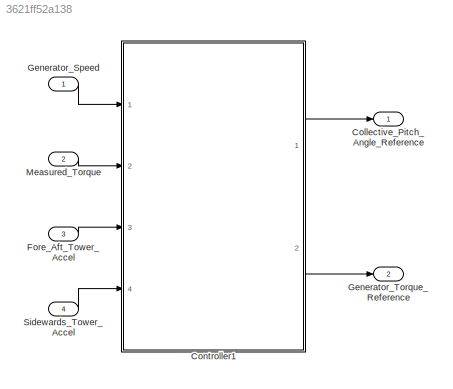
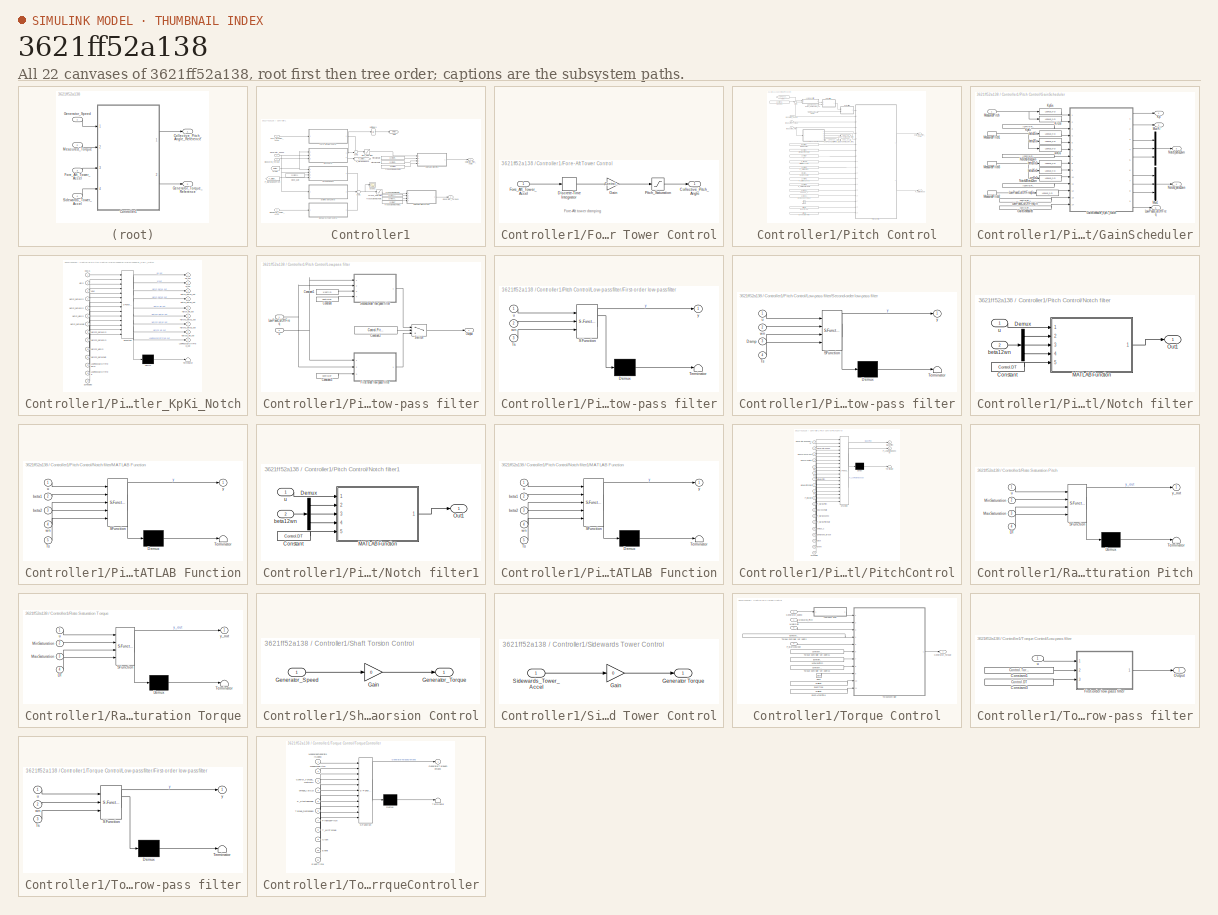
[diagram: thumbnail index - all 22 canvases of the model, root first then tree order]
MODEL slx_3621ff52a138
KIND model
CONFIG AbsTol = auto
CONFIG EnableMultiTasking = off
CONFIG FixedStep = auto
CONFIG MaxStep = auto
CONFIG MinStep = auto
CONFIG RelTol = 1e-3
CONFIG SampleTimeConstraint = Unconstrained
CONFIG Solver = FixedStepAuto
CONFIG SolverName = FixedStepAuto
CONFIG StartTime = 0.0
CONFIG StopTime = 10.0
BLOCK [Outport] Collective_Pitch_Angle_Reference
  IconDisplay = Port number
  SignalType = real
  VectorParamsAs1DForOutWhenUnconnected = off
BLOCK [SubSystem] Controller1
  Ports = [4, 2]
  RequestExecContextInheritance = off
BLOCK [Outport] Controller1/Collective_Pitch_Angle
  IconDisplay = Port number
  SignalType = real
  VectorParamsAs1DForOutWhenUnconnected = off
BLOCK [SubSystem] Controller1/Fore-Aft Tower Control
  Ports = [1, 1]
  RequestExecContextInheritance = off
BLOCK [Outport] Controller1/Fore-Aft Tower Control/Collective_Pitch_Angle
  IconDisplay = Port number
  VectorParamsAs1DForOutWhenUnconnected = off
BLOCK [DiscreteIntegrator] Controller1/Fore-Aft Tower Control/Discrete-Time Integrator
  ICPrevOutput = DiscIntNeverNeededParam
  ICPrevScaledInput = DiscIntNeverNeededParam
  Ports = [1, 1]
  SampleTime = -1
BLOCK [Inport] Controller1/Fore-Aft Tower Control/Fore_Aft_Tower_Accel
  IconDisplay = Port number
BLOCK [Gain] Controller1/Fore-Aft Tower Control/Gain
  Gain = Control.ForeAft.Gain
  OutDataTypeStr = Inherit: Inherit via internal rule
  ParamDataTypeStr = Inherit: Inherit via internal rule
  SaturateOnIntegerOverflow = off
BLOCK [Saturate] Controller1/Fore-Aft Tower Control/Pitch_Saturation
  InputPortMap = u0
  LowerLimit = -Control.ForeAft.MaxPitchAmplitude*pi/180
  Ports = [1, 1]
  UpperLimit = Control.ForeAft.MaxPitchAmplitude*pi/180
BLOCK [Inport] Controller1/Fore_Aft_Tower_Accel
  IconDisplay = Port number
  Port = 3
BLOCK [From] Controller1/From1
  CloseFcn = tagdialog Close
  GotoTag = mPitch
BLOCK [Inport] Controller1/Generator_Speed
  IconDisplay = Port number
BLOCK [Outport] Controller1/Generator_Torque1
  IconDisplay = Port number
  Port = 2
  VectorParamsAs1DForOutWhenUnconnected = off
BLOCK [Goto] Controller1/Go to
  GotoTag = mPitch
BLOCK [Inport] Controller1/Measured_Torque
  IconDisplay = Port number
  Port = 2
BLOCK [Constant] Controller1/Mode_gain
  Value = Control.Torque.OptGain
BLOCK [From] Controller1/P_StartupModeFrom
  CloseFcn = tagdialog Close
  GotoTag = P_StartupMode
BLOCK [Goto] Controller1/P_StartupModeTo
  GotoTag = P_StartupMode
BLOCK [SubSystem] Controller1/Pitch Control
  Ports = [3, 2]
  RequestExecContextInheritance = off
BLOCK [Clock] Controller1/Pitch Control/Clock
BLOCK [Outport] Controller1/Pitch Control/Collective_Pitch_Angle
  IconDisplay = Port number
  VectorParamsAs1DForOutWhenUnconnected = off
BLOCK [Constant] Controller1/Pitch Control/DT
  Value = Control.DT
BLOCK [Constant] Controller1/Pitch Control/DemandedTorque
  Value = Control.Torque.Demanded
BLOCK [Constant] Controller1/Pitch Control/EventActionTime
  Value = CertificationSettings.Mode.Actiontime
BLOCK [Constant] Controller1/Pitch Control/EventType
  Value = CertificationSettings.Mode.Type
BLOCK [From] Controller1/Pitch Control/From
  GotoTag = LowPassCutOffFreq
BLOCK [From] Controller1/Pitch Control/From1
  GotoTag = Notch2_beta12wn
BLOCK [SubSystem] Controller1/Pitch Control/GainScheduler
  Ports = [1, 5]
  RequestExecContextInheritance = off
BLOCK [Constant] Controller1/Pitch Control/GainScheduler/GainScheduled
  Value = Control.Pitch.Scheduled
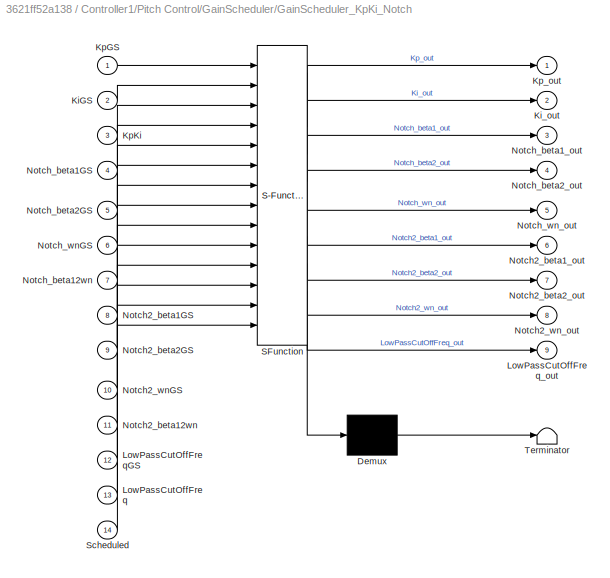
BLOCK [SubSystem] Controller1/Pitch Control/GainScheduler/GainScheduler_KpKi_Notch
  ErrorFcn = Stateflow.Translate.translate
  PermitHierarchicalResolution = ExplicitOnly
  Ports = [14, 9]
  RequestExecContextInheritance = off
  SFBlockType = MATLAB Function
  TreatAsAtomicUnit = on
BLOCK [Demux] Controller1/Pitch Control/GainScheduler/GainScheduler_KpKi_Notch/ Demux 
  Outputs = 1
  Ports = [1, 1]
BLOCK [S-Function] Controller1/Pitch Control/GainScheduler/GainScheduler_KpKi_Notch/ SFunction 
  EnableBusSupport = on
  FunctionName = sf_sfun
  PortCounts = [14 10]
  Ports = [14, 10]
  SFcnIsStateOwnerBlock = off
  SFunctionDeploymentMode = off
  Tag = Stateflow S-Function 11
BLOCK [Terminator] Controller1/Pitch Control/GainScheduler/GainScheduler_KpKi_Notch/ Terminator 
BLOCK [Inport] Controller1/Pitch Control/GainScheduler/GainScheduler_KpKi_Notch/KiGS
  IconDisplay = Port number
  Port = 2
BLOCK [Outport] Controller1/Pitch Control/GainScheduler/GainScheduler_KpKi_Notch/Ki_out
  IconDisplay = Port number
  Port = 2
  VectorParamsAs1DForOutWhenUnconnected = off
BLOCK [Inport] Controller1/Pitch Control/GainScheduler/GainScheduler_KpKi_Notch/KpGS
  IconDisplay = Port number
BLOCK [Inport] Controller1/Pitch Control/GainScheduler/GainScheduler_KpKi_Notch/KpKi
  IconDisplay = Port number
  Port = 3
BLOCK [Outport] Controller1/Pitch Control/GainScheduler/GainScheduler_KpKi_Notch/Kp_out
  IconDisplay = Port number
  VectorParamsAs1DForOutWhenUnconnected = off
BLOCK [Inport] Controller1/Pitch Control/GainScheduler/GainScheduler_KpKi_Notch/LowPassCutOffFreq
  IconDisplay = Port number
  Port = 13
BLOCK [Inport] Controller1/Pitch Control/GainScheduler/GainScheduler_KpKi_Notch/LowPassCutOffFreqGS
  IconDisplay = Port number
  Port = 12
BLOCK [Outport] Controller1/Pitch Control/GainScheduler/GainScheduler_KpKi_Notch/LowPassCutOffFreq_out
  IconDisplay = Port number
  Port = 9
  VectorParamsAs1DForOutWhenUnconnected = off
BLOCK [Inport] Controller1/Pitch Control/GainScheduler/GainScheduler_KpKi_Notch/Notch2_beta12wn
  IconDisplay = Port number
  Port = 11
BLOCK [Inport] Controller1/Pitch Control/GainScheduler/GainScheduler_KpKi_Notch/Notch2_beta1GS
  IconDisplay = Port number
  Port = 8
BLOCK [Outport] Controller1/Pitch Control/GainScheduler/GainScheduler_KpKi_Notch/Notch2_beta1_out
  IconDisplay = Port number
  Port = 6
  VectorParamsAs1DForOutWhenUnconnected = off
BLOCK [Inport] Controller1/Pitch Control/GainScheduler/GainScheduler_KpKi_Notch/Notch2_beta2GS
  IconDisplay = Port number
  Port = 9
BLOCK [Outport] Controller1/Pitch Control/GainScheduler/GainScheduler_KpKi_Notch/Notch2_beta2_out
  IconDisplay = Port number
  Port = 7
  VectorParamsAs1DForOutWhenUnconnected = off
BLOCK [Inport] Controller1/Pitch Control/GainScheduler/GainScheduler_KpKi_Notch/Notch2_wnGS
  IconDisplay = Port number
  Port = 10
BLOCK [Outport] Controller1/Pitch Control/GainScheduler/GainScheduler_KpKi_Notch/Notch2_wn_out
  IconDisplay = Port number
  Port = 8
  VectorParamsAs1DForOutWhenUnconnected = off
BLOCK [Inport] Controller1/Pitch Control/GainScheduler/GainScheduler_KpKi_Notch/Notch_beta12wn
  IconDisplay = Port number
  Port = 7
BLOCK [Inport] Controller1/Pitch Control/GainScheduler/GainScheduler_KpKi_Notch/Notch_beta1GS
  IconDisplay = Port number
  Port = 4
BLOCK [Outport] Controller1/Pitch Control/GainScheduler/GainScheduler_KpKi_Notch/Notch_beta1_out
  IconDisplay = Port number
  Port = 3
  VectorParamsAs1DForOutWhenUnconnected = off
BLOCK [Inport] Controller1/Pitch Control/GainScheduler/GainScheduler_KpKi_Notch/Notch_beta2GS
  IconDisplay = Port number
  Port = 5
BLOCK [Outport] Controller1/Pitch Control/GainScheduler/GainScheduler_KpKi_Notch/Notch_beta2_out
  IconDisplay = Port number
  Port = 4
  VectorParamsAs1DForOutWhenUnconnected = off
BLOCK [Inport] Controller1/Pitch Control/GainScheduler/GainScheduler_KpKi_Notch/Notch_wnGS
  IconDisplay = Port number
  Port = 6
BLOCK [Outport] Controller1/Pitch Control/GainScheduler/GainScheduler_KpKi_Notch/Notch_wn_out
  IconDisplay = Port number
  Port = 5
  VectorParamsAs1DForOutWhenUnconnected = off
BLOCK [Inport] Controller1/Pitch Control/GainScheduler/GainScheduler_KpKi_Notch/Scheduled
  IconDisplay = Port number
  Port = 14
BLOCK [Outport] Controller1/Pitch Control/GainScheduler/Ki
  IconDisplay = Port number
  Port = 2
  VectorParamsAs1DForOutWhenUnconnected = off
BLOCK [Lookup_n-D] Controller1/Pitch Control/GainScheduler/KiGS
  BreakpointsForDimension1 = Control.Pitch.ScheduledPitchAngles
  ExtrapMethod = Clip
  InternalRulePriority = Speed
  NumberOfTableDimensions = 1
  Ports = [1, 1]
  RndMeth = Simplest
  Table = Control.Pitch.KiGS
  UseLastTableValue = on
BLOCK [Outport] Controller1/Pitch Control/GainScheduler/Kp
  IconDisplay = Port number
  VectorParamsAs1DForOutWhenUnconnected = off
BLOCK [Lookup_n-D] Controller1/Pitch Control/GainScheduler/KpGs
  BreakpointsForDimension1 = Control.Pitch.ScheduledPitchAngles
  ExtrapMethod = Clip
  InternalRulePriority = Speed
  NumberOfTableDimensions = 1
  Ports = [1, 1]
  RndMeth = Simplest
  Table = Control.Pitch.KpGS
  UseLastTableValue = on
BLOCK [Constant] Controller1/Pitch Control/GainScheduler/KpKi
  Value = [Control.Pitch.Kp Control.Pitch.Ki]
BLOCK [Outport] Controller1/Pitch Control/GainScheduler/LowPassCutOffFreq
  IconDisplay = Port number
  Port = 5
  VectorParamsAs1DForOutWhenUnconnected = off
BLOCK [Lookup_n-D] Controller1/Pitch Control/GainScheduler/LowPassCutOffFreqGs
  BreakpointsForDimension1 = Control.Pitch.ScheduledPitchAngles
  ExtrapMethod = Clip
  InternalRulePriority = Speed
  NumberOfTableDimensions = 1
  Ports = [1, 1]
  RndMeth = Simplest
  Table = Control.Pitch.LowPassCutOffFreqGS
  UseLastTableValue = on
BLOCK [Constant] Controller1/Pitch Control/GainScheduler/LowPassCutOffFreq_in
  Value = Control.Pitch.LowPassCutOffFreq
BLOCK [Inport] Controller1/Pitch Control/GainScheduler/MeasuredPitch
  IconDisplay = Port number
BLOCK [InportShadow] Controller1/Pitch Control/GainScheduler/MeasuredPitch1
  IconDisplay = Port number
BLOCK [InportShadow] Controller1/Pitch Control/GainScheduler/MeasuredPitch2
  IconDisplay = Port number
BLOCK [InportShadow] Controller1/Pitch Control/GainScheduler/MeasuredPitch3
  IconDisplay = Port number
BLOCK [Mux] Controller1/Pitch Control/GainScheduler/Mux
  DisplayOption = bar
  Inputs = 3
  Ports = [3, 1]
BLOCK [Mux] Controller1/Pitch Control/GainScheduler/Mux1
  DisplayOption = bar
  Inputs = 3
  Ports = [3, 1]
BLOCK [Constant] Controller1/Pitch Control/GainScheduler/Notch2Beta12wn
  Value = [Control.Pitch.Notch_beta1 Control.Pitch.Notch_beta2 Control.Pitch.Notch_wn]
BLOCK [Outport] Controller1/Pitch Control/GainScheduler/Notch2_beta12wn
  IconDisplay = Port number
  Port = 4
  VectorParamsAs1DForOutWhenUnconnected = off
BLOCK [Constant] Controller1/Pitch Control/GainScheduler/NotchBeta12wn
  Value = [Control.Pitch.Notch_beta1 Control.Pitch.Notch_beta2 Control.Pitch.Notch_wn]
BLOCK [Outport] Controller1/Pitch Control/GainScheduler/Notch_beta12wn
  IconDisplay = Port number
  Port = 3
  VectorParamsAs1DForOutWhenUnconnected = off
BLOCK [Lookup_n-D] Controller1/Pitch Control/GainScheduler/beta1Gs
  BreakpointsForDimension1 = Control.Pitch.ScheduledPitchAngles
  ExtrapMethod = Clip
  InternalRulePriority = Speed
  NumberOfTableDimensions = 1
  Ports = [1, 1]
  RndMeth = Simplest
  Table = Control.Pitch.Notch_beta1GS
  UseLastTableValue = on
BLOCK [Lookup_n-D] Controller1/Pitch Control/GainScheduler/beta1Gs1
  BreakpointsForDimension1 = Control.Pitch.ScheduledPitchAngles
  ExtrapMethod = Clip
  InternalRulePriority = Speed
  NumberOfTableDimensions = 1
  Ports = [1, 1]
  RndMeth = Simplest
  Table = Control.Pitch.Notch2_beta1GS
  UseLastTableValue = on
BLOCK [Lookup_n-D] Controller1/Pitch Control/GainScheduler/beta2Gs
  BreakpointsForDimension1 = Control.Pitch.ScheduledPitchAngles
  ExtrapMethod = Clip
  InternalRulePriority = Speed
  NumberOfTableDimensions = 1
  Ports = [1, 1]
  RndMeth = Simplest
  Table = Control.Pitch.Notch_beta2GS
  UseLastTableValue = on
BLOCK [Lookup_n-D] Controller1/Pitch Control/GainScheduler/beta2Gs1
  BreakpointsForDimension1 = Control.Pitch.ScheduledPitchAngles
  ExtrapMethod = Clip
  InternalRulePriority = Speed
  NumberOfTableDimensions = 1
  Ports = [1, 1]
  RndMeth = Simplest
  Table = Control.Pitch.Notch2_beta2GS
  UseLastTableValue = on
BLOCK [Lookup_n-D] Controller1/Pitch Control/GainScheduler/wnGs
  BreakpointsForDimension1 = Control.Pitch.ScheduledPitchAngles
  ExtrapMethod = Clip
  InternalRulePriority = Speed
  NumberOfTableDimensions = 1
  Ports = [1, 1]
  RndMeth = Simplest
  Table = Control.Pitch.Notch_wnGS
  UseLastTableValue = on
BLOCK [Lookup_n-D] Controller1/Pitch Control/GainScheduler/wnGs1
  BreakpointsForDimension1 = Control.Pitch.ScheduledPitchAngles
  ExtrapMethod = Clip
  InternalRulePriority = Speed
  NumberOfTableDimensions = 1
  Ports = [1, 1]
  RndMeth = Simplest
  Table = Control.Pitch.Notch2_wnGS
  UseLastTableValue = on
BLOCK [Constant] Controller1/Pitch Control/GearboxRatio
  Value = Drivetrain.Gearbox.Ratio
BLOCK [Inport] Controller1/Pitch Control/Generator_Speed
  IconDisplay = Port number
  Port = 2
BLOCK [Constant] Controller1/Pitch Control/InitialPitchAngle
  Value = P_InitAngle
BLOCK [SubSystem] Controller1/Pitch Control/Low-pass filter
  Ports = [2, 1]
  RequestExecContextInheritance = off
BLOCK [Constant] Controller1/Pitch Control/Low-pass filter/Constant
  Value = Control.DT
BLOCK [Constant] Controller1/Pitch Control/Low-pass filter/Constant1
  Value = 1/sqrt(2)
BLOCK [Constant] Controller1/Pitch Control/Low-pass filter/Constant2
  Value = Control.Pitch.LowPassOrder
BLOCK [Constant] Controller1/Pitch Control/Low-pass filter/Constant3
  Value = Control.DT
BLOCK [SubSystem] Controller1/Pitch Control/Low-pass filter/First-order low-pass filter
  ErrorFcn = Stateflow.Translate.translate
  PermitHierarchicalResolution = ExplicitOnly
  Ports = [3, 1]
  RequestExecContextInheritance = off
  SFBlockType = MATLAB Function
  TreatAsAtomicUnit = on
BLOCK [Demux] Controller1/Pitch Control/Low-pass filter/First-order low-pass filter/ Demux 
  Outputs = 1
  Ports = [1, 1]
BLOCK [S-Function] Controller1/Pitch Control/Low-pass filter/First-order low-pass filter/ SFunction 
  EnableBusSupport = on
  FunctionName = sf_sfun
  PortCounts = [3 2]
  Ports = [3, 2]
  SFcnIsStateOwnerBlock = off
  SFunctionDeploymentMode = off
  Tag = Stateflow S-Function 12
BLOCK [Terminator] Controller1/Pitch Control/Low-pass filter/First-order low-pass filter/ Terminator 
BLOCK [Inport] Controller1/Pitch Control/Low-pass filter/First-order low-pass filter/Ts
  IconDisplay = Port number
  Port = 3
BLOCK [Inport] Controller1/Pitch Control/Low-pass filter/First-order low-pass filter/u
  IconDisplay = Port number
BLOCK [Inport] Controller1/Pitch Control/Low-pass filter/First-order low-pass filter/wn
  IconDisplay = Port number
  Port = 2
BLOCK [Outport] Controller1/Pitch Control/Low-pass filter/First-order low-pass filter/y
  IconDisplay = Port number
  VectorParamsAs1DForOutWhenUnconnected = off
BLOCK [Inport] Controller1/Pitch Control/Low-pass filter/LowPassCutOffFreq
  IconDisplay = Port number
BLOCK [Outport] Controller1/Pitch Control/Low-pass filter/Output
  IconDisplay = Port number
  VectorParamsAs1DForOutWhenUnconnected = off
BLOCK [SubSystem] Controller1/Pitch Control/Low-pass filter/Second-order low-pass filter
  ErrorFcn = Stateflow.Translate.translate
  PermitHierarchicalResolution = ExplicitOnly
  Ports = [4, 1]
  RequestExecContextInheritance = off
  SFBlockType = MATLAB Function
  TreatAsAtomicUnit = on
BLOCK [Demux] Controller1/Pitch Control/Low-pass filter/Second-order low-pass filter/ Demux 
  Outputs = 1
  Ports = [1, 1]
BLOCK [S-Function] Controller1/Pitch Control/Low-pass filter/Second-order low-pass filter/ SFunction 
  EnableBusSupport = on
  FunctionName = sf_sfun
  PortCounts = [4 2]
  Ports = [4, 2]
  SFcnIsStateOwnerBlock = off
  SFunctionDeploymentMode = off
  Tag = Stateflow S-Function 13
BLOCK [Terminator] Controller1/Pitch Control/Low-pass filter/Second-order low-pass filter/ Terminator 
BLOCK [Inport] Controller1/Pitch Control/Low-pass filter/Second-order low-pass filter/Damp
  IconDisplay = Port number
  Port = 3
BLOCK [Inport] Controller1/Pitch Control/Low-pass filter/Second-order low-pass filter/Ts
  IconDisplay = Port number
  Port = 4
BLOCK [Inport] Controller1/Pitch Control/Low-pass filter/Second-order low-pass filter/u
  IconDisplay = Port number
BLOCK [Inport] Controller1/Pitch Control/Low-pass filter/Second-order low-pass filter/wn
  IconDisplay = Port number
  Port = 2
BLOCK [Outport] Controller1/Pitch Control/Low-pass filter/Second-order low-pass filter/y
  IconDisplay = Port number
  VectorParamsAs1DForOutWhenUnconnected = off
BLOCK [Switch] Controller1/Pitch Control/Low-pass filter/Switch
  Criteria = u2 > Threshold
  InputSameDT = off
  SaturateOnIntegerOverflow = off
  Threshold = 1.5
BLOCK [Inport] Controller1/Pitch Control/Low-pass filter/u
  IconDisplay = Port number
  Port = 2
BLOCK [Goto] Controller1/Pitch Control/LowPassCutOffFreq_from
  GotoTag = LowPassCutOffFreq
BLOCK [Inport] Controller1/Pitch Control/Measured_Pitch
  IconDisplay = Port number
BLOCK [Inport] Controller1/Pitch Control/Measured_Torque
  IconDisplay = Port number
  Port = 3
BLOCK [Constant] Controller1/Pitch Control/MinMaxPitch
  Value = [Control.Pitch.Fine Control.Pitch.Max]
BLOCK [Constant] Controller1/Pitch Control/MinMaxPitchRate
  Value = [Control.Pitch.Minrate Control.Pitch.Maxrate]
BLOCK [SubSystem] Controller1/Pitch Control/Notch filter
  Ports = [2, 1]
  RequestExecContextInheritance = off
BLOCK [Constant] Controller1/Pitch Control/Notch filter/Constant
  Value = Control.DT
BLOCK [Demux] Controller1/Pitch Control/Notch filter/Demux
  DisplayOption = bar
  Outputs = 3
  Ports = [1, 3]
BLOCK [SubSystem] Controller1/Pitch Control/Notch filter/MATLAB Function
  ErrorFcn = Stateflow.Translate.translate
  PermitHierarchicalResolution = ExplicitOnly
  Ports = [5, 1]
  RequestExecContextInheritance = off
  SFBlockType = MATLAB Function
  TreatAsAtomicUnit = on
BLOCK [Demux] Controller1/Pitch Control/Notch filter/MATLAB Function/ Demux 
  Outputs = 1
  Ports = [1, 1]
BLOCK [S-Function] Controller1/Pitch Control/Notch filter/MATLAB Function/ SFunction 
  EnableBusSupport = on
  FunctionName = sf_sfun
  PortCounts = [5 2]
  Ports = [5, 2]
  SFcnIsStateOwnerBlock = off
  SFunctionDeploymentMode = off
  Tag = Stateflow S-Function 14
BLOCK [Terminator] Controller1/Pitch Control/Notch filter/MATLAB Function/ Terminator 
BLOCK [Inport] Controller1/Pitch Control/Notch filter/MATLAB Function/Ts
  IconDisplay = Port number
  Port = 5
BLOCK [Inport] Controller1/Pitch Control/Notch filter/MATLAB Function/beta1
  IconDisplay = Port number
  Port = 2
BLOCK [Inport] Controller1/Pitch Control/Notch filter/MATLAB Function/beta2
  IconDisplay = Port number
  Port = 3
BLOCK [Inport] Controller1/Pitch Control/Notch filter/MATLAB Function/u
  IconDisplay = Port number
BLOCK [Inport] Controller1/Pitch Control/Notch filter/MATLAB Function/wn
  IconDisplay = Port number
  Port = 4
BLOCK [Outport] Controller1/Pitch Control/Notch filter/MATLAB Function/y
  IconDisplay = Port number
  VectorParamsAs1DForOutWhenUnconnected = off
BLOCK [Outport] Controller1/Pitch Control/Notch filter/Out1
  IconDisplay = Port number
  VectorParamsAs1DForOutWhenUnconnected = off
BLOCK [Inport] Controller1/Pitch Control/Notch filter/beta12wn
  IconDisplay = Port number
  Port = 2
BLOCK [Inport] Controller1/Pitch Control/Notch filter/u
  IconDisplay = Port number
BLOCK [SubSystem] Controller1/Pitch Control/Notch filter1
  Ports = [2, 1]
  RequestExecContextInheritance = off
BLOCK [Constant] Controller1/Pitch Control/Notch filter1/Constant
  Value = Control.DT
BLOCK [Demux] Controller1/Pitch Control/Notch filter1/Demux
  DisplayOption = bar
  Outputs = 3
  Ports = [1, 3]
BLOCK [SubSystem] Controller1/Pitch Control/Notch filter1/MATLAB Function
  ErrorFcn = Stateflow.Translate.translate
  PermitHierarchicalResolution = ExplicitOnly
  Ports = [5, 1]
  RequestExecContextInheritance = off
  SFBlockType = MATLAB Function
  TreatAsAtomicUnit = on
BLOCK [Demux] Controller1/Pitch Control/Notch filter1/MATLAB Function/ Demux 
  Outputs = 1
  Ports = [1, 1]
BLOCK [S-Function] Controller1/Pitch Control/Notch filter1/MATLAB Function/ SFunction 
  EnableBusSupport = on
  FunctionName = sf_sfun
  PortCounts = [5 2]
  Ports = [5, 2]
  SFcnIsStateOwnerBlock = off
  SFunctionDeploymentMode = off
  Tag = Stateflow S-Function 15
BLOCK [Terminator] Controller1/Pitch Control/Notch filter1/MATLAB Function/ Terminator 
BLOCK [Inport] Controller1/Pitch Control/Notch filter1/MATLAB Function/Ts
  IconDisplay = Port number
  Port = 5
BLOCK [Inport] Controller1/Pitch Control/Notch filter1/MATLAB Function/beta1
  IconDisplay = Port number
  Port = 2
BLOCK [Inport] Controller1/Pitch Control/Notch filter1/MATLAB Function/beta2
  IconDisplay = Port number
  Port = 3
BLOCK [Inport] Controller1/Pitch Control/Notch filter1/MATLAB Function/u
  IconDisplay = Port number
BLOCK [Inport] Controller1/Pitch Control/Notch filter1/MATLAB Function/wn
  IconDisplay = Port number
  Port = 4
BLOCK [Outport] Controller1/Pitch Control/Notch filter1/MATLAB Function/y
  IconDisplay = Port number
  VectorParamsAs1DForOutWhenUnconnected = off
BLOCK [Outport] Controller1/Pitch Control/Notch filter1/Out1
  IconDisplay = Port number
  VectorParamsAs1DForOutWhenUnconnected = off
BLOCK [Inport] Controller1/Pitch Control/Notch filter1/beta12wn
  IconDisplay = Port number
  Port = 2
BLOCK [Inport] Controller1/Pitch Control/Notch filter1/u
  IconDisplay = Port number
BLOCK [From] Controller1/Pitch Control/Notch_beta12wn_To
  GotoTag = Notch_beta12wn
BLOCK [Goto] Controller1/Pitch Control/Notch_beta12wn_from
  GotoTag = Notch_beta12wn
BLOCK [Goto] Controller1/Pitch Control/Notch_beta12wn_from1
  GotoTag = Notch2_beta12wn
BLOCK [Outport] Controller1/Pitch Control/P_StartupMode
  IconDisplay = Port number
  Port = 2
  VectorParamsAs1DForOutWhenUnconnected = off
BLOCK [Constant] Controller1/Pitch Control/P_StartupPitch
  Value = Control.Pitch.StartupPitch
BLOCK [Constant] Controller1/Pitch Control/P_StartupPitchRate
  Value = Control.Pitch.StartupPitchRate
BLOCK [Constant] Controller1/Pitch Control/P_StartupSpeed
  Value = Control.Pitch.StartupSpeed
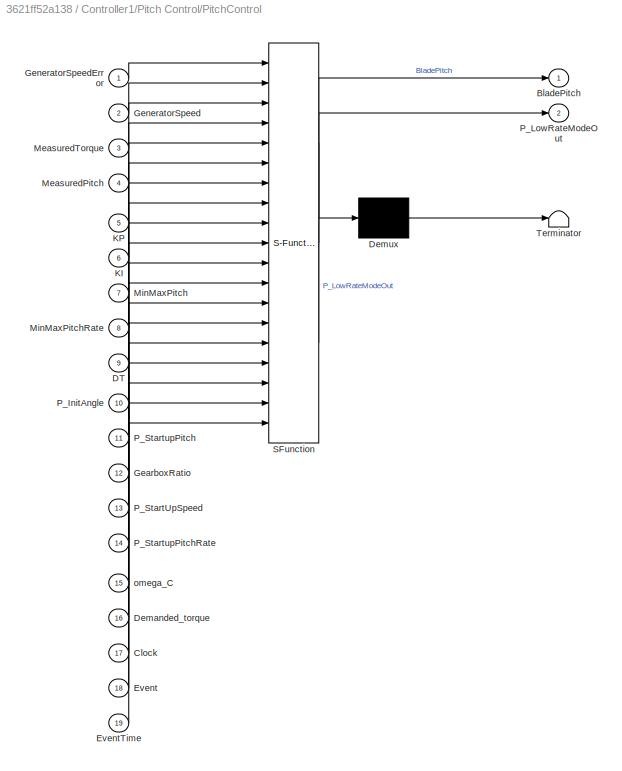
BLOCK [SubSystem] Controller1/Pitch Control/PitchControl
  ErrorFcn = Stateflow.Translate.translate
  PermitHierarchicalResolution = ExplicitOnly
  Ports = [19, 2]
  RequestExecContextInheritance = off
  SFBlockType = MATLAB Function
  TreatAsAtomicUnit = on
BLOCK [Demux] Controller1/Pitch Control/PitchControl/ Demux 
  Outputs = 1
  Ports = [1, 1]
BLOCK [S-Function] Controller1/Pitch Control/PitchControl/ SFunction 
  EnableBusSupport = on
  FunctionName = sf_sfun
  PortCounts = [19 3]
  Ports = [19, 3]
  SFcnIsStateOwnerBlock = off
  SFunctionDeploymentMode = off
  Tag = Stateflow S-Function 16
BLOCK [Terminator] Controller1/Pitch Control/PitchControl/ Terminator 
BLOCK [Outport] Controller1/Pitch Control/PitchControl/BladePitch
  IconDisplay = Port number
  VectorParamsAs1DForOutWhenUnconnected = off
BLOCK [Inport] Controller1/Pitch Control/PitchControl/Clock
  IconDisplay = Port number
  Port = 17
BLOCK [Inport] Controller1/Pitch Control/PitchControl/DT
  IconDisplay = Port number
  Port = 9
BLOCK [Inport] Controller1/Pitch Control/PitchControl/Demanded_torque
  IconDisplay = Port number
  Port = 16
BLOCK [Inport] Controller1/Pitch Control/PitchControl/Event
  IconDisplay = Port number
  Port = 18
BLOCK [Inport] Controller1/Pitch Control/PitchControl/EventTime
  IconDisplay = Port number
  Port = 19
BLOCK [Inport] Controller1/Pitch Control/PitchControl/GearboxRatio
  IconDisplay = Port number
  Port = 12
BLOCK [Inport] Controller1/Pitch Control/PitchControl/GeneratorSpeed
  IconDisplay = Port number
  Port = 2
BLOCK [Inport] Controller1/Pitch Control/PitchControl/GeneratorSpeedError
  IconDisplay = Port number
BLOCK [Inport] Controller1/Pitch Control/PitchControl/KI
  IconDisplay = Port number
  Port = 6
BLOCK [Inport] Controller1/Pitch Control/PitchControl/KP
  IconDisplay = Port number
  Port = 5
BLOCK [Inport] Controller1/Pitch Control/PitchControl/MeasuredPitch
  IconDisplay = Port number
  Port = 4
BLOCK [Inport] Controller1/Pitch Control/PitchControl/MeasuredTorque
  IconDisplay = Port number
  Port = 3
BLOCK [Inport] Controller1/Pitch Control/PitchControl/MinMaxPitch
  IconDisplay = Port number
  Port = 7
BLOCK [Inport] Controller1/Pitch Control/PitchControl/MinMaxPitchRate
  IconDisplay = Port number
  Port = 8
BLOCK [Inport] Controller1/Pitch Control/PitchControl/P_InitAngle
  IconDisplay = Port number
  Port = 10
BLOCK [Outport] Controller1/Pitch Control/PitchControl/P_LowRateModeOut
  IconDisplay = Port number
  Port = 2
  VectorParamsAs1DForOutWhenUnconnected = off
BLOCK [Inport] Controller1/Pitch Control/PitchControl/P_StartUpSpeed
  IconDisplay = Port number
  Port = 13
BLOCK [Inport] Controller1/Pitch Control/PitchControl/P_StartupPitch
  IconDisplay = Port number
  Port = 11
BLOCK [Inport] Controller1/Pitch Control/PitchControl/P_StartupPitchRate
  IconDisplay = Port number
  Port = 14
BLOCK [Inport] Controller1/Pitch Control/PitchControl/omega_C
  IconDisplay = Port number
  Port = 15
BLOCK [Constant] Controller1/Pitch Control/SpeedC
  Value = Control.Torque.SpeedC*pi/30
BLOCK [Constant] Controller1/Pitch Control/SpeedC_2
  Value = Control.Torque.SpeedC
BLOCK [Sum] Controller1/Pitch Control/Sum
  IconShape = round
  InputSameDT = off
  Inputs = |+-
  OutDataTypeStr = Inherit: Inherit via internal rule
  Ports = [2, 1]
  SaturateOnIntegerOverflow = off
BLOCK [Constant] Controller1/PitchMaxRate
  Value = Control.Pitch.Maxrate/180*pi
BLOCK [Constant] Controller1/PitchMinRate
  Value = Control.Pitch.Minrate/180*pi
BLOCK [Saturate] Controller1/Pitch_Saturation
  InputPortMap = u0
  LowerLimit = Control.Pitch.Min*pi/180
  Ports = [1, 1]
  UpperLimit = Control.Pitch.Max*pi/180
BLOCK [SubSystem] Controller1/Rate Saturation Pitch
  ErrorFcn = Stateflow.Translate.translate
  PermitHierarchicalResolution = ExplicitOnly
  Ports = [4, 1]
  RequestExecContextInheritance = off
  SFBlockType = MATLAB Function
  TreatAsAtomicUnit = on
BLOCK [Demux] Controller1/Rate Saturation Pitch/ Demux 
  Outputs = 1
  Ports = [1, 1]
BLOCK [S-Function] Controller1/Rate Saturation Pitch/ SFunction 
  EnableBusSupport = on
  FunctionName = sf_sfun
  PortCounts = [4 2]
  Ports = [4, 2]
  SFcnIsStateOwnerBlock = off
  SFunctionDeploymentMode = off
  Tag = Stateflow S-Function 1
BLOCK [Terminator] Controller1/Rate Saturation Pitch/ Terminator 
BLOCK [Inport] Controller1/Rate Saturation Pitch/DT
  IconDisplay = Port number
  Port = 4
BLOCK [Inport] Controller1/Rate Saturation Pitch/MaxSaturation
  IconDisplay = Port number
  Port = 3
BLOCK [Inport] Controller1/Rate Saturation Pitch/MinSaturation
  IconDisplay = Port number
  Port = 2
BLOCK [Inport] Controller1/Rate Saturation Pitch/u
  IconDisplay = Port number
BLOCK [Outport] Controller1/Rate Saturation Pitch/y_out
  IconDisplay = Port number
  VectorParamsAs1DForOutWhenUnconnected = off
BLOCK [SubSystem] Controller1/Rate Saturation Torque
  ErrorFcn = Stateflow.Translate.translate
  PermitHierarchicalResolution = ExplicitOnly
  Ports = [4, 1]
  RequestExecContextInheritance = off
  SFBlockType = MATLAB Function
  TreatAsAtomicUnit = on
BLOCK [Demux] Controller1/Rate Saturation Torque/ Demux 
  Outputs = 1
  Ports = [1, 1]
BLOCK [S-Function] Controller1/Rate Saturation Torque/ SFunction 
  EnableBusSupport = on
  FunctionName = sf_sfun
  PortCounts = [4 2]
  Ports = [4, 2]
  SFcnIsStateOwnerBlock = off
  SFunctionDeploymentMode = off
  Tag = Stateflow S-Function 18
BLOCK [Terminator] Controller1/Rate Saturation Torque/ Terminator 
BLOCK [Inport] Controller1/Rate Saturation Torque/DT
  IconDisplay = Port number
  Port = 4
BLOCK [Inport] Controller1/Rate Saturation Torque/MaxSaturation
  IconDisplay = Port number
  Port = 3
BLOCK [Inport] Controller1/Rate Saturation Torque/MinSaturation
  IconDisplay = Port number
  Port = 2
BLOCK [Inport] Controller1/Rate Saturation Torque/u
  IconDisplay = Port number
BLOCK [Outport] Controller1/Rate Saturation Torque/y_out
  IconDisplay = Port number
  VectorParamsAs1DForOutWhenUnconnected = off
BLOCK [Scope] Controller1/Scope1
  Floating = off
  NumInputPorts = 1
  Ports = [1]
  ScopeSpecificationString = Simulink.scopes.TimeScopeBlockCfg('CurrentConfiguration', extmgr.ConfigurationSet(extmgr.Configuration('Core','General UI',true),extmgr.Configuration('Core','Source UI',true),extmgr.Configuration('Sources','WiredSimulink',true,'DataLoggingVariableName','ScopeData2'),extmgr.Configuration('Visuals','Time Domain',true,'SerializedDisplays',{struct('MinYLimReal','3111.51928','MaxYLimReal','27683.83097'...<+1389ch>
BLOCK [SubSystem] Controller1/Shaft Torsion Control
  Ports = [1, 1]
  RequestExecContextInheritance = off
BLOCK [Gain] Controller1/Shaft Torsion Control/Gain
  Gain = 0
  OutDataTypeStr = Inherit: Inherit via internal rule
  ParamDataTypeStr = Inherit: Inherit via internal rule
  SaturateOnIntegerOverflow = off
BLOCK [Inport] Controller1/Shaft Torsion Control/Generator_Speed
  IconDisplay = Port number
BLOCK [Outport] Controller1/Shaft Torsion Control/Generator_Torque
  IconDisplay = Port number
  VectorParamsAs1DForOutWhenUnconnected = off
BLOCK [SubSystem] Controller1/Sidewards Tower Control
  Ports = [1, 1]
  RequestExecContextInheritance = off
BLOCK [Gain] Controller1/Sidewards Tower Control/Gain
  Gain = 0
  OutDataTypeStr = Inherit: Inherit via internal rule
  ParamDataTypeStr = Inherit: Inherit via internal rule
  SaturateOnIntegerOverflow = off
BLOCK [Outport] Controller1/Sidewards Tower Control/Generator Torque
  IconDisplay = Port number
  VectorParamsAs1DForOutWhenUnconnected = off
BLOCK [Inport] Controller1/Sidewards Tower Control/Sidewards_Tower_Accel
  IconDisplay = Port number
BLOCK [Inport] Controller1/Sidewards_Tower_Accel
  IconDisplay = Port number
  Port = 4
  PortDimensions = 1
  SignalType = real
BLOCK [Sum] Controller1/Sum1
  IconShape = round
  InputSameDT = off
  Inputs = +++
  OutDataTypeStr = Inherit: Inherit via internal rule
  Ports = [3, 1]
  SaturateOnIntegerOverflow = off
BLOCK [Sum] Controller1/Sum2
  IconShape = round
  InputSameDT = off
  Inputs = ++|
  OutDataTypeStr = Inherit: Inherit via internal rule
  Ports = [2, 1]
  SaturateOnIntegerOverflow = off
BLOCK [SubSystem] Controller1/Torque Control
  Ports = [4, 1]
  RequestExecContextInheritance = off
BLOCK [Clock] Controller1/Torque Control/Clock
BLOCK [Constant] Controller1/Torque Control/EventActionTime
  Value = CertificationSettings.Mode.Actiontime
BLOCK [Constant] Controller1/Torque Control/EventType
  Value = CertificationSettings.Mode.Type
BLOCK [Inport] Controller1/Torque Control/Generator_Speed
  IconDisplay = Port number
  Port = 2
BLOCK [Outport] Controller1/Torque Control/Generator_Torque
  IconDisplay = Port number
  VectorParamsAs1DForOutWhenUnconnected = off
BLOCK [SubSystem] Controller1/Torque Control/Low-pass filter
  Ports = [1, 1]
  RequestExecContextInheritance = off
BLOCK [Constant] Controller1/Torque Control/Low-pass filter/Constant1
  Value = Control.Torque.LowPassCutOffFreq
BLOCK [Constant] Controller1/Torque Control/Low-pass filter/Constant3
  Value = Control.DT
BLOCK [SubSystem] Controller1/Torque Control/Low-pass filter/First-order low-pass filter
  ErrorFcn = Stateflow.Translate.translate
  PermitHierarchicalResolution = ExplicitOnly
  Ports = [3, 1]
  RequestExecContextInheritance = off
  SFBlockType = MATLAB Function
  TreatAsAtomicUnit = on
BLOCK [Demux] Controller1/Torque Control/Low-pass filter/First-order low-pass filter/ Demux 
  Outputs = 1
  Ports = [1, 1]
BLOCK [S-Function] Controller1/Torque Control/Low-pass filter/First-order low-pass filter/ SFunction 
  EnableBusSupport = on
  FunctionName = sf_sfun
  PortCounts = [3 2]
  Ports = [3, 2]
  SFcnIsStateOwnerBlock = off
  SFunctionDeploymentMode = off
  Tag = Stateflow S-Function 19
BLOCK [Terminator] Controller1/Torque Control/Low-pass filter/First-order low-pass filter/ Terminator 
BLOCK [Inport] Controller1/Torque Control/Low-pass filter/First-order low-pass filter/Ts
  IconDisplay = Port number
  Port = 3
BLOCK [Inport] Controller1/Torque Control/Low-pass filter/First-order low-pass filter/u
  IconDisplay = Port number
BLOCK [Inport] Controller1/Torque Control/Low-pass filter/First-order low-pass filter/wn
  IconDisplay = Port number
  Port = 2
BLOCK [Outport] Controller1/Torque Control/Low-pass filter/First-order low-pass filter/y
  IconDisplay = Port number
  VectorParamsAs1DForOutWhenUnconnected = off
BLOCK [Outport] Controller1/Torque Control/Low-pass filter/Output
  IconDisplay = Port number
  VectorParamsAs1DForOutWhenUnconnected = off
BLOCK [Inport] Controller1/Torque Control/Low-pass filter/u
  IconDisplay = Port number
BLOCK [Inport] Controller1/Torque Control/Measured_Pitch
  IconDisplay = Port number
BLOCK [Constant] Controller1/Torque Control/MinMaxPitch
  Value = [Control.Pitch.Fine Control.Pitch.Max]
BLOCK [Inport] Controller1/Torque Control/ModeGain
  IconDisplay = Port number
  Port = 3
BLOCK [Inport] Controller1/Torque Control/P_StartupMode
  IconDisplay = Port number
  Port = 4
BLOCK [Constant] Controller1/Torque Control/Torque Controller set points
  Value = [Control.Torque.SpeedA Control.Torque.SpeedB Control.Torque.SpeedB2 Control.Torque.SpeedC]
BLOCK [Constant] Controller1/Torque Control/Torque Controller set points1
  Value = Control.Torque.Demanded
BLOCK [Constant] Controller1/Torque Control/Torque Controller set points3
  Value = Control.Torque.Min
BLOCK [SubSystem] Controller1/Torque Control/TorqueController
  ErrorFcn = Stateflow.Translate.translate
  PermitHierarchicalResolution = ExplicitOnly
  Ports = [11, 1]
  RequestExecContextInheritance = off
  SFBlockType = MATLAB Function
  TreatAsAtomicUnit = on
BLOCK [Demux] Controller1/Torque Control/TorqueController/ Demux 
  Outputs = 1
  Ports = [1, 1]
BLOCK [S-Function] Controller1/Torque Control/TorqueController/ SFunction 
  EnableBusSupport = on
  FunctionName = sf_sfun
  PortCounts = [11 2]
  Ports = [11, 2]
  SFcnIsStateOwnerBlock = off
  SFunctionDeploymentMode = off
  Tag = Stateflow S-Function 20
BLOCK [Terminator] Controller1/Torque Control/TorqueController/ Terminator 
BLOCK [Inport] Controller1/Torque Control/TorqueController/Clock
  IconDisplay = Port number
  Port = 9
BLOCK [Inport] Controller1/Torque Control/TorqueController/Control_Torque_OptGain
  IconDisplay = Port number
  Port = 3
BLOCK [Inport] Controller1/Torque Control/TorqueController/Event
  IconDisplay = Port number
  Port = 10
BLOCK [Inport] Controller1/Torque Control/TorqueController/EventTime
  IconDisplay = Port number
  Port = 11
BLOCK [Inport] Controller1/Torque Control/TorqueController/FineMaxPitch
  IconDisplay = Port number
  Port = 7
BLOCK [Outport] Controller1/Torque Control/TorqueController/GeneratorTorqueDemand
  IconDisplay = Port number
  VectorParamsAs1DForOutWhenUnconnected = off
BLOCK [Inport] Controller1/Torque Control/TorqueController/MeasuredGeneratorSpeed
  IconDisplay = Port number
BLOCK [Inport] Controller1/Torque Control/TorqueController/MeasuredPitch
  IconDisplay = Port number
  Port = 2
BLOCK [Inport] Controller1/Torque Control/TorqueController/P_StartupMode
  IconDisplay = Port number
  Port = 5
BLOCK [Inport] Controller1/Torque Control/TorqueController/T_MinTorque
  IconDisplay = Port number
  Port = 8
BLOCK [Inport] Controller1/Torque Control/TorqueController/Torque_Demanded
  IconDisplay = Port number
  Port = 6
BLOCK [Inport] Controller1/Torque Control/TorqueController/omega_ABCD
  IconDisplay = Port number
  Port = 4
BLOCK [Saturate] Controller1/Torque_Saturation
  InputPortMap = u0
  LowerLimit = Control.Torque.Min
  Ports = [1, 1]
  UpperLimit = Control.Torque.Limit
BLOCK [Constant] Controller1/TroqueSlewMaxRate
  Value = Control.Torque.Slewrate
BLOCK [Constant] Controller1/TroqueSlewMaxRate1
  Value = Control.DT
BLOCK [Constant] Controller1/TroqueSlewMaxRate2
  Value = Control.DT
BLOCK [Constant] Controller1/TroqueSlewMinRate
  Value = -Control.Torque.Slewrate
BLOCK [UnitDelay] Controller1/Unit Delay1
  HasFrameUpgradeWarning = on
  InitialCondition = P_InitAngle*pi/180
  SampleTime = -1
BLOCK [Inport] Fore_Aft_Tower_Accel
  IconDisplay = Port number
  Port = 3
BLOCK [Inport] Generator_Speed
  IconDisplay = Port number
BLOCK [Outport] Generator_Torque_Reference
  IconDisplay = Port number
  Port = 2
  VectorParamsAs1DForOutWhenUnconnected = off
BLOCK [Inport] Measured_Torque
  IconDisplay = Port number
  Port = 2
BLOCK [Inport] Sidewards_Tower_Accel
  IconDisplay = Port number
  Port = 4
  PortDimensions = 1
  SignalType = real
ANNOTATION Controller1/Fore-Aft Tower Control: Fore-Aft tower damping
LINE Controller1/Fore-Aft Tower Control/Discrete-Time Integrator:1 -> Controller1/Fore-Aft Tower Control/Gain:1
LINE Controller1/Fore-Aft Tower Control/Fore_Aft_Tower_Accel:1 -> Controller1/Fore-Aft Tower Control/Discrete-Time Integrator:1
LINE Controller1/Fore-Aft Tower Control/Gain:1 -> Controller1/Fore-Aft Tower Control/Pitch_Saturation:1
LINE Controller1/Fore-Aft Tower Control/Pitch_Saturation:1 -> Controller1/Fore-Aft Tower Control/Collective_Pitch_Angle:1
LINE Controller1/Fore-Aft Tower Control:1 -> Controller1/Sum2:1
LINE Controller1/Fore_Aft_Tower_Accel:1 -> Controller1/Fore-Aft Tower Control:1
NET Controller1/From1:1 -> Controller1/Pitch Control:1, Controller1/Torque Control:1
NET Controller1/Generator_Speed:1 -> Controller1/Pitch Control:2, Controller1/Shaft Torsion Control:1, Controller1/Torque Control:2
LINE Controller1/Measured_Torque:1 -> Controller1/Pitch Control:3
LINE Controller1/Mode_gain:1 -> Controller1/Torque Control:3
LINE Controller1/P_StartupModeFrom:1 -> Controller1/Torque Control:4
LINE Controller1/Pitch Control/Clock:1 -> Controller1/Pitch Control/PitchControl:17
LINE Controller1/Pitch Control/DT:1 -> Controller1/Pitch Control/PitchControl:9
LINE Controller1/Pitch Control/DemandedTorque:1 -> Controller1/Pitch Control/PitchControl:16
LINE Controller1/Pitch Control/EventActionTime:1 -> Controller1/Pitch Control/PitchControl:19
LINE Controller1/Pitch Control/EventType:1 -> Controller1/Pitch Control/PitchControl:18
LINE Controller1/Pitch Control/From1:1 -> Controller1/Pitch Control/Notch filter1:2
LINE Controller1/Pitch Control/From:1 -> Controller1/Pitch Control/Low-pass filter:1
LINE Controller1/Pitch Control/GainScheduler/GainScheduled:1 -> Controller1/Pitch Control/GainScheduler/GainScheduler_KpKi_Notch:14
LINE Controller1/Pitch Control/GainScheduler/GainScheduler_KpKi_Notch:1 -> Controller1/Pitch Control/GainScheduler/Kp:1
LINE Controller1/Pitch Control/GainScheduler/GainScheduler_KpKi_Notch:2 -> Controller1/Pitch Control/GainScheduler/Ki:1
LINE Controller1/Pitch Control/GainScheduler/GainScheduler_KpKi_Notch:3 -> Controller1/Pitch Control/GainScheduler/Mux:1
LINE Controller1/Pitch Control/GainScheduler/GainScheduler_KpKi_Notch:4 -> Controller1/Pitch Control/GainScheduler/Mux:2
LINE Controller1/Pitch Control/GainScheduler/GainScheduler_KpKi_Notch:5 -> Controller1/Pitch Control/GainScheduler/Mux:3
LINE Controller1/Pitch Control/GainScheduler/GainScheduler_KpKi_Notch:6 -> Controller1/Pitch Control/GainScheduler/Mux1:1
LINE Controller1/Pitch Control/GainScheduler/GainScheduler_KpKi_Notch:7 -> Controller1/Pitch Control/GainScheduler/Mux1:2
LINE Controller1/Pitch Control/GainScheduler/GainScheduler_KpKi_Notch:8 -> Controller1/Pitch Control/GainScheduler/Mux1:3
LINE Controller1/Pitch Control/GainScheduler/GainScheduler_KpKi_Notch:9 -> Controller1/Pitch Control/GainScheduler/LowPassCutOffFreq:1
LINE Controller1/Pitch Control/GainScheduler/KiGS:1 -> Controller1/Pitch Control/GainScheduler/GainScheduler_KpKi_Notch:2
LINE Controller1/Pitch Control/GainScheduler/KpGs:1 -> Controller1/Pitch Control/GainScheduler/GainScheduler_KpKi_Notch:1
LINE Controller1/Pitch Control/GainScheduler/KpKi:1 -> Controller1/Pitch Control/GainScheduler/GainScheduler_KpKi_Notch:3
LINE Controller1/Pitch Control/GainScheduler/LowPassCutOffFreqGs:1 -> Controller1/Pitch Control/GainScheduler/GainScheduler_KpKi_Notch:12
LINE Controller1/Pitch Control/GainScheduler/LowPassCutOffFreq_in:1 -> Controller1/Pitch Control/GainScheduler/GainScheduler_KpKi_Notch:13
NET Controller1/Pitch Control/GainScheduler/MeasuredPitch1:1 -> Controller1/Pitch Control/GainScheduler/beta1Gs:1, Controller1/Pitch Control/GainScheduler/beta2Gs:1, Controller1/Pitch Control/GainScheduler/wnGs:1
LINE Controller1/Pitch Control/GainScheduler/MeasuredPitch2:1 -> Controller1/Pitch Control/GainScheduler/LowPassCutOffFreqGs:1
NET Controller1/Pitch Control/GainScheduler/MeasuredPitch3:1 -> Controller1/Pitch Control/GainScheduler/beta1Gs1:1, Controller1/Pitch Control/GainScheduler/beta2Gs1:1, Controller1/Pitch Control/GainScheduler/wnGs1:1
NET Controller1/Pitch Control/GainScheduler/MeasuredPitch:1 -> Controller1/Pitch Control/GainScheduler/KiGS:1, Controller1/Pitch Control/GainScheduler/KpGs:1
LINE Controller1/Pitch Control/GainScheduler/Mux1:1 -> Controller1/Pitch Control/GainScheduler/Notch2_beta12wn:1
LINE Controller1/Pitch Control/GainScheduler/Mux:1 -> Controller1/Pitch Control/GainScheduler/Notch_beta12wn:1
LINE Controller1/Pitch Control/GainScheduler/Notch2Beta12wn:1 -> Controller1/Pitch Control/GainScheduler/GainScheduler_KpKi_Notch:11
LINE Controller1/Pitch Control/GainScheduler/NotchBeta12wn:1 -> Controller1/Pitch Control/GainScheduler/GainScheduler_KpKi_Notch:7
LINE Controller1/Pitch Control/GainScheduler/beta1Gs1:1 -> Controller1/Pitch Control/GainScheduler/GainScheduler_KpKi_Notch:8
LINE Controller1/Pitch Control/GainScheduler/beta1Gs:1 -> Controller1/Pitch Control/GainScheduler/GainScheduler_KpKi_Notch:4
LINE Controller1/Pitch Control/GainScheduler/beta2Gs1:1 -> Controller1/Pitch Control/GainScheduler/GainScheduler_KpKi_Notch:9
LINE Controller1/Pitch Control/GainScheduler/beta2Gs:1 -> Controller1/Pitch Control/GainScheduler/GainScheduler_KpKi_Notch:5
LINE Controller1/Pitch Control/GainScheduler/wnGs1:1 -> Controller1/Pitch Control/GainScheduler/GainScheduler_KpKi_Notch:10
LINE Controller1/Pitch Control/GainScheduler/wnGs:1 -> Controller1/Pitch Control/GainScheduler/GainScheduler_KpKi_Notch:6
LINE Controller1/Pitch Control/GainScheduler:1 -> Controller1/Pitch Control/PitchControl:5
LINE Controller1/Pitch Control/GainScheduler:2 -> Controller1/Pitch Control/PitchControl:6
LINE Controller1/Pitch Control/GainScheduler:3 -> Controller1/Pitch Control/Notch_beta12wn_from:1
LINE Controller1/Pitch Control/GainScheduler:4 -> Controller1/Pitch Control/Notch_beta12wn_from1:1
LINE Controller1/Pitch Control/GainScheduler:5 -> Controller1/Pitch Control/LowPassCutOffFreq_from:1
LINE Controller1/Pitch Control/GearboxRatio:1 -> Controller1/Pitch Control/PitchControl:12
NET Controller1/Pitch Control/Generator_Speed:1 -> Controller1/Pitch Control/PitchControl:2, Controller1/Pitch Control/Sum:2
LINE Controller1/Pitch Control/InitialPitchAngle:1 -> Controller1/Pitch Control/PitchControl:10
LINE Controller1/Pitch Control/Low-pass filter/Constant1:1 -> Controller1/Pitch Control/Low-pass filter/Second-order low-pass filter:3
LINE Controller1/Pitch Control/Low-pass filter/Constant2:1 -> Controller1/Pitch Control/Low-pass filter/Switch:2
LINE Controller1/Pitch Control/Low-pass filter/Constant3:1 -> Controller1/Pitch Control/Low-pass filter/First-order low-pass filter:3
LINE Controller1/Pitch Control/Low-pass filter/Constant:1 -> Controller1/Pitch Control/Low-pass filter/Second-order low-pass filter:4
LINE Controller1/Pitch Control/Low-pass filter/First-order low-pass filter:1 -> Controller1/Pitch Control/Low-pass filter/Switch:3
NET Controller1/Pitch Control/Low-pass filter/LowPassCutOffFreq:1 -> Controller1/Pitch Control/Low-pass filter/First-order low-pass filter:2, Controller1/Pitch Control/Low-pass filter/Second-order low-pass filter:2
LINE Controller1/Pitch Control/Low-pass filter/Second-order low-pass filter:1 -> Controller1/Pitch Control/Low-pass filter/Switch:1
LINE Controller1/Pitch Control/Low-pass filter/Switch:1 -> Controller1/Pitch Control/Low-pass filter/Output:1
NET Controller1/Pitch Control/Low-pass filter/u:1 -> Controller1/Pitch Control/Low-pass filter/First-order low-pass filter:1, Controller1/Pitch Control/Low-pass filter/Second-order low-pass filter:1
LINE Controller1/Pitch Control/Low-pass filter:1 -> Controller1/Pitch Control/Notch filter:1
NET Controller1/Pitch Control/Measured_Pitch:1 -> Controller1/Pitch Control/GainScheduler:1, Controller1/Pitch Control/PitchControl:4
LINE Controller1/Pitch Control/Measured_Torque:1 -> Controller1/Pitch Control/PitchControl:3
LINE Controller1/Pitch Control/MinMaxPitch:1 -> Controller1/Pitch Control/PitchControl:7
LINE Controller1/Pitch Control/MinMaxPitchRate:1 -> Controller1/Pitch Control/PitchControl:8
LINE Controller1/Pitch Control/Notch filter/Constant:1 -> Controller1/Pitch Control/Notch filter/MATLAB Function:5
LINE Controller1/Pitch Control/Notch filter/Demux:1 -> Controller1/Pitch Control/Notch filter/MATLAB Function:2
LINE Controller1/Pitch Control/Notch filter/Demux:2 -> Controller1/Pitch Control/Notch filter/MATLAB Function:3
LINE Controller1/Pitch Control/Notch filter/Demux:3 -> Controller1/Pitch Control/Notch filter/MATLAB Function:4
LINE Controller1/Pitch Control/Notch filter/MATLAB Function:1 -> Controller1/Pitch Control/Notch filter/Out1:1
LINE Controller1/Pitch Control/Notch filter/beta12wn:1 -> Controller1/Pitch Control/Notch filter/Demux:1
LINE Controller1/Pitch Control/Notch filter/u:1 -> Controller1/Pitch Control/Notch filter/MATLAB Function:1
LINE Controller1/Pitch Control/Notch filter1/Constant:1 -> Controller1/Pitch Control/Notch filter1/MATLAB Function:5
LINE Controller1/Pitch Control/Notch filter1/Demux:1 -> Controller1/Pitch Control/Notch filter1/MATLAB Function:2
LINE Controller1/Pitch Control/Notch filter1/Demux:2 -> Controller1/Pitch Control/Notch filter1/MATLAB Function:3
LINE Controller1/Pitch Control/Notch filter1/Demux:3 -> Controller1/Pitch Control/Notch filter1/MATLAB Function:4
LINE Controller1/Pitch Control/Notch filter1/MATLAB Function:1 -> Controller1/Pitch Control/Notch filter1/Out1:1
LINE Controller1/Pitch Control/Notch filter1/beta12wn:1 -> Controller1/Pitch Control/Notch filter1/Demux:1
LINE Controller1/Pitch Control/Notch filter1/u:1 -> Controller1/Pitch Control/Notch filter1/MATLAB Function:1
LINE Controller1/Pitch Control/Notch filter1:1 -> Controller1/Pitch Control/PitchControl:1
LINE Controller1/Pitch Control/Notch filter:1 -> Controller1/Pitch Control/Notch filter1:1
LINE Controller1/Pitch Control/Notch_beta12wn_To:1 -> Controller1/Pitch Control/Notch filter:2
LINE Controller1/Pitch Control/P_StartupPitch:1 -> Controller1/Pitch Control/PitchControl:11
LINE Controller1/Pitch Control/P_StartupPitchRate:1 -> Controller1/Pitch Control/PitchControl:14
LINE Controller1/Pitch Control/P_StartupSpeed:1 -> Controller1/Pitch Control/PitchControl:13
LINE Controller1/Pitch Control/PitchControl:1 -> Controller1/Pitch Control/Collective_Pitch_Angle:1
LINE Controller1/Pitch Control/PitchControl:2 -> Controller1/Pitch Control/P_StartupMode:1
LINE Controller1/Pitch Control/SpeedC:1 -> Controller1/Pitch Control/Sum:1
LINE Controller1/Pitch Control/SpeedC_2:1 -> Controller1/Pitch Control/PitchControl:15
LINE Controller1/Pitch Control/Sum:1 -> Controller1/Pitch Control/Low-pass filter:2
NET Controller1/Pitch Control:1 -> Controller1/Sum2:2, Controller1/Unit Delay1:1
LINE Controller1/Pitch Control:2 -> Controller1/P_StartupModeTo:1
LINE Controller1/PitchMaxRate:1 -> Controller1/Rate Saturation Pitch:3
LINE Controller1/PitchMinRate:1 -> Controller1/Rate Saturation Pitch:2
LINE Controller1/Pitch_Saturation:1 -> Controller1/Rate Saturation Pitch:1
LINE Controller1/Rate Saturation Pitch:1 -> Controller1/Collective_Pitch_Angle:1
LINE Controller1/Rate Saturation Torque:1 -> Controller1/Generator_Torque1:1
LINE Controller1/Shaft Torsion Control/Gain:1 -> Controller1/Shaft Torsion Control/Generator_Torque:1
LINE Controller1/Shaft Torsion Control/Generator_Speed:1 -> Controller1/Shaft Torsion Control/Gain:1
LINE Controller1/Shaft Torsion Control:1 -> Controller1/Sum1:2
LINE Controller1/Sidewards Tower Control/Gain:1 -> Controller1/Sidewards Tower Control/Generator Torque:1
LINE Controller1/Sidewards Tower Control/Sidewards_Tower_Accel:1 -> Controller1/Sidewards Tower Control/Gain:1
LINE Controller1/Sidewards Tower Control:1 -> Controller1/Sum1:3
LINE Controller1/Sidewards_Tower_Accel:1 -> Controller1/Sidewards Tower Control:1
NET Controller1/Sum1:1 -> Controller1/Scope1:1, Controller1/Torque_Saturation:1
LINE Controller1/Sum2:1 -> Controller1/Pitch_Saturation:1
LINE Controller1/Torque Control/Clock:1 -> Controller1/Torque Control/TorqueController:9
LINE Controller1/Torque Control/EventActionTime:1 -> Controller1/Torque Control/TorqueController:11
LINE Controller1/Torque Control/EventType:1 -> Controller1/Torque Control/TorqueController:10
LINE Controller1/Torque Control/Generator_Speed:1 -> Controller1/Torque Control/Low-pass filter:1
LINE Controller1/Torque Control/Low-pass filter/Constant1:1 -> Controller1/Torque Control/Low-pass filter/First-order low-pass filter:2
LINE Controller1/Torque Control/Low-pass filter/Constant3:1 -> Controller1/Torque Control/Low-pass filter/First-order low-pass filter:3
LINE Controller1/Torque Control/Low-pass filter/First-order low-pass filter:1 -> Controller1/Torque Control/Low-pass filter/Output:1
LINE Controller1/Torque Control/Low-pass filter/u:1 -> Controller1/Torque Control/Low-pass filter/First-order low-pass filter:1
LINE Controller1/Torque Control/Low-pass filter:1 -> Controller1/Torque Control/TorqueController:1
LINE Controller1/Torque Control/Measured_Pitch:1 -> Controller1/Torque Control/TorqueController:2
LINE Controller1/Torque Control/MinMaxPitch:1 -> Controller1/Torque Control/TorqueController:7
LINE Controller1/Torque Control/ModeGain:1 -> Controller1/Torque Control/TorqueController:3
LINE Controller1/Torque Control/P_StartupMode:1 -> Controller1/Torque Control/TorqueController:5
LINE Controller1/Torque Control/Torque Controller set points1:1 -> Controller1/Torque Control/TorqueController:6
LINE Controller1/Torque Control/Torque Controller set points3:1 -> Controller1/Torque Control/TorqueController:8
LINE Controller1/Torque Control/Torque Controller set points:1 -> Controller1/Torque Control/TorqueController:4
LINE Controller1/Torque Control/TorqueController:1 -> Controller1/Torque Control/Generator_Torque:1
LINE Controller1/Torque Control:1 -> Controller1/Sum1:1
LINE Controller1/Torque_Saturation:1 -> Controller1/Rate Saturation Torque:1
LINE Controller1/TroqueSlewMaxRate1:1 -> Controller1/Rate Saturation Torque:4
LINE Controller1/TroqueSlewMaxRate2:1 -> Controller1/Rate Saturation Pitch:4
LINE Controller1/TroqueSlewMaxRate:1 -> Controller1/Rate Saturation Torque:3
LINE Controller1/TroqueSlewMinRate:1 -> Controller1/Rate Saturation Torque:2
LINE Controller1/Unit Delay1:1 -> Controller1/Go to:1
LINE Controller1:1 -> Collective_Pitch_Angle_Reference:1
LINE Controller1:2 -> Generator_Torque_Reference:1
LINE Fore_Aft_Tower_Accel:1 -> Controller1:3
LINE Generator_Speed:1 -> Controller1:1
LINE Measured_Torque:1 -> Controller1:2
LINE Sidewards_Tower_Accel:1 -> Controller1:4
note: NET lines group one-source signal fan-out (src -> all destinations, sorted); 1:1 wires keep LINE
CHART Controller1/Rate Saturation Pitch states=1 transitions=1
  STATE_LABEL 'eML_blk_kernel()'
  STATE_LABEL 'SCRIPT:\nfunction y_out = fcn(u, MinSaturation, MaxSaturation, DT)\npersistent y\n\nif isempty(y)\n    y = u;\nend\n\nrate = (u-y)/DT;\nrate = min(max(rate, MinSaturation), MaxSaturation);\n\ny = y + rate*DT;\ny_out = y;'
CHART Controller1/Pitch Control/GainScheduler/GainScheduler_KpKi_Notch states=1 transitions=1
  STATE_LABEL 'eML_blk_kernel()'
  STATE_LABEL 'SCRIPT:\nfunction [Kp_out, Ki_out, Notch_beta1_out, Notch_beta2_out, Notch_wn_out, Notch2_beta1_out, Notch2_beta2_out, Notch2_wn_out, LowPassCutOffFreq_out] = fcn(KpGS, KiGS, KpKi, Notch_beta1GS, Notch_beta2GS, Notch_wnGS, Notch_beta12wn, Notch2_beta1GS, Notch2_beta2GS, Notch2_wnGS, Notch2_beta12wn, LowPassCutOffFreqGS, LowPassCutOffFreq, Scheduled)\n\nif Scheduled > 0.5\n    Kp_out = KpGS;\n    Ki_out...<+619ch>'
CHART Controller1/Pitch Control/Low-pass filter/First-order low-pass filter states=1 transitions=1
  STATE_LABEL 'eML_blk_kernel()'
  STATE_LABEL 'SCRIPT:\nfunction y = FirstLPF(u, wn, Ts)\n\npersistent y_prev1 u_prev1\n\nif isempty(u_prev1)\n    y_prev1 = u;\n    u_prev1 = u;\nend\n\ny = (Ts*wn*u + Ts*wn*u_prev1 - (Ts*wn-2.0)*y_prev1)/(Ts*wn+2.0);\n\nu_prev1   = u;\ny_prev1  = y;'
CHART Controller1/Pitch Control/Low-pass filter/Second-order low-pass filter states=1 transitions=1
  STATE_LABEL 'eML_blk_kernel()'
  STATE_LABEL 'SCRIPT:\nfunction y = SecLPF(u, wn, Damp, Ts)\n\npersistent y_prev1 y_prev2 u_prev1 u_prev2\n\nif isempty(u_prev1)\n    y_prev1 = u;\n    y_prev2 = u;\n    u_prev1 = u;\n    u_prev2 = u;\nend\n\ny = 1/(4+4*Ts*Damp*wn+Ts^2*wn^2) * ( (8-2*Ts^2*wn^2)*y_prev1 + ...\n    (-4+4*Ts*Damp*wn-Ts^2*wn^2)*y_prev2 + (Ts^2*wn^2)*u ...\n    + (2*Ts^2*wn^2)*u_prev1 + (Ts^2*wn^2)*u_prev2 );\n\nu_prev2   = u_prev1;\nu_prev1   = u;\n...<+33ch>'
CHART Controller1/Pitch Control/Notch filter/MATLAB Function states=1 transitions=1
  STATE_LABEL 'eML_blk_kernel()'
  STATE_LABEL 'SCRIPT:\nfunction y = NotchFilter(u, beta1, beta2, wn, Ts)\n\npersistent u_prev1 u_prev2 y_prev1 y_prev2\nif isempty(u_prev1)\n    u_prev1 = u;\n    u_prev2 = u;\n    y_prev1 = u;\n    y_prev2 = u;\nend\n\nif any([beta1 beta2 wn] == 0)\n    y = u;\nelse\n    % Prepare filter elements from current input\n    K = 2/Ts;\n    Part1 = (K^2 + 2*wn*beta1 * K + wn^2) / (K^2 + 2*wn*beta2 * K + wn^2);\n    Part2 = (2 * wn^2...<+507ch>'
CHART Controller1/Pitch Control/Notch filter1/MATLAB Function states=1 transitions=1
  STATE_LABEL 'eML_blk_kernel()'
  STATE_LABEL 'SCRIPT:\nfunction y = NotchFilter(u, beta1, beta2, wn, Ts)\n\npersistent u_prev1 u_prev2 y_prev1 y_prev2\nif isempty(u_prev1)\n    u_prev1 = u;\n    u_prev2 = u;\n    y_prev1 = u;\n    y_prev2 = u;\nend\n\nif any([beta1 beta2 wn] == 0)\n    y = u;\nelse\n    % Prepare filter elements from current input\n    K = 2/Ts;\n    Part1 = (K^2 + 2*wn*beta1 * K + wn^2) / (K^2 + 2*wn*beta2 * K + wn^2);\n    Part2 = (2 * wn^2...<+507ch>'
CHART Controller1/Pitch Control/PitchControl states=1 transitions=1
  STATE_LABEL 'eML_blk_kernel()'
  STATE_LABEL 'SCRIPT:\nfunction [BladePitch, P_LowRateModeOut]  = PitchControl(GeneratorSpeedError, GeneratorSpeed, MeasuredTorque, MeasuredPitch, KP, KI, MinMaxPitch, MinMaxPitchRate, DT, P_InitAngle, P_StartupPitch, GearboxRatio, P_StartUpSpeed, P_StartupPitchRate, omega_C, Demanded_torque, Clock, Event, EventTime)\npersistent I_term PI_term_old P_LowRateMode P_LowRateMode_old\n\n%Initialize all persistent variab...<+2539ch>'
CHART Controller1/Rate Saturation Torque states=1 transitions=1
  STATE_LABEL 'eML_blk_kernel()'
  STATE_LABEL 'SCRIPT:\nfunction y_out = fcn(u, MinSaturation, MaxSaturation, DT)\npersistent y\n\nif isempty(y)\n    y = u;\nend\n\nrate = (u-y)/DT;\nrate = min(max(rate, MinSaturation), MaxSaturation);\n\ny = y + rate*DT;\ny_out = y;'
CHART Controller1/Torque Control/Low-pass filter/First-order low-pass filter states=1 transitions=1
  STATE_LABEL 'eML_blk_kernel()'
  STATE_LABEL 'SCRIPT:\nfunction y = FirstLPF(u, wn, Ts)\n\npersistent y_prev1 u_prev1\n\nif isempty(u_prev1)\n    y_prev1 = u;\n    u_prev1 = u;\nend\n\ny = (Ts*wn*u + Ts*wn*u_prev1 - (Ts*wn-2.0)*y_prev1)/(Ts*wn+2.0);\n\nu_prev1   = u;\ny_prev1  = y;'
CHART Controller1/Torque Control/TorqueController states=1 transitions=1
  STATE_LABEL 'eML_blk_kernel()'
  STATE_LABEL 'SCRIPT:\nfunction GeneratorTorqueDemand  = TorqueController(MeasuredGeneratorSpeed, MeasuredPitch, Control_Torque_OptGain, omega_ABCD, P_StartupMode, Torque_Demanded, FineMaxPitch, T_MinTorque, Clock, Event, EventTime)\n\n% Calculate generator torque setpoint according to the feedforward wind\n% turbine control law T = K*\\omega^2\nGeneratorTorqueDemand = max(min(Control_Torque_OptGain*MeasuredGenerator...<+1143ch>'
